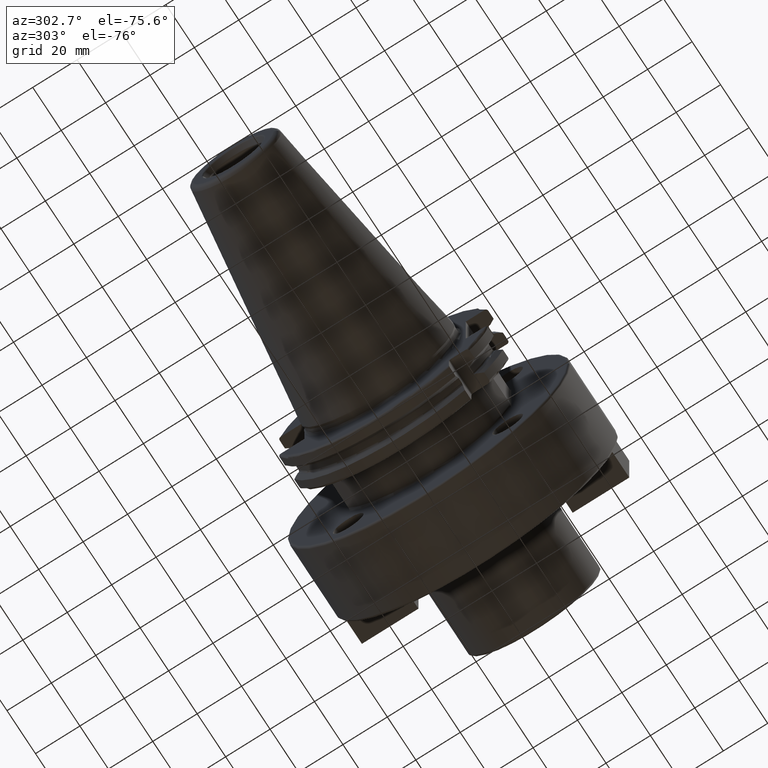
[diagram: clean part render]
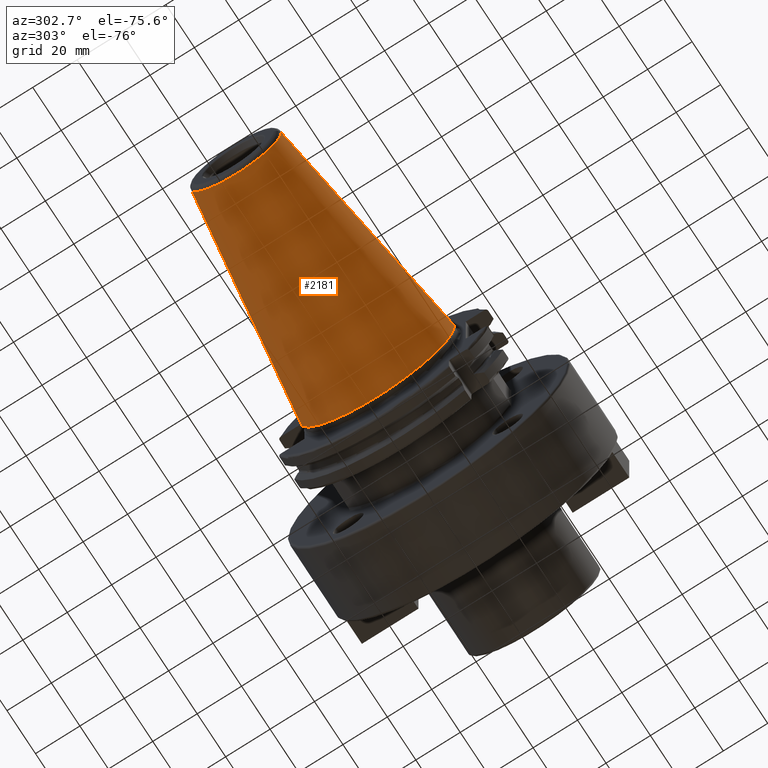
[diagram: same view with one face highlighted and labeled with its STEP entity id]
A machine part, auxiliary view. The second image highlights one B-rep face of the part: STEP entity #2181.
In plain terms, the highlighted conical surface has half-angle 8.298 deg.
Its self-contained STEP definition (entity closure, byte-faithful):
#32=CARTESIAN_POINT('',(-9.967471700563E1,0.E0,0.E0));
#33=DIRECTION('',(-1.E0,0.E0,0.E0));
#34=DIRECTION('',(0.E0,1.E0,0.E0));
#35=AXIS2_PLACEMENT_3D('',#32,#33,#34);
#47=DIRECTION('',(-9.895312636440E-1,-1.443186691705E-1,0.E0));
#48=VECTOR('',#47,1.002343617797E2);
#49=CARTESIAN_POINT('',(-4.896823332305E-1,3.485358204157E1,0.E0));
#50=LINE('',#49,#48);
#51=DIRECTION('',(-9.895312636440E-1,1.443186691705E-1,0.E0));
#52=VECTOR('',#51,1.002343617797E2);
#53=CARTESIAN_POINT('',(-4.896823332305E-1,-3.485358204157E1,0.E0));
#54=LINE('',#53,#52);
#55=CARTESIAN_POINT('',(-4.896823332305E-1,0.E0,0.E0));
#56=DIRECTION('',(-1.E0,0.E0,0.E0));
#57=DIRECTION('',(0.E0,1.E0,0.E0));
#58=AXIS2_PLACEMENT_3D('',#55,#56,#57);
#1741=CARTESIAN_POINT('',(-9.967471700563E1,2.038789234437E1,0.E0));
#1743=VERTEX_POINT('',#1741);
#1745=CARTESIAN_POINT('',(-9.967471700563E1,-2.038789234437E1,0.E0));
#1747=VERTEX_POINT('',#1745);
#1809=CARTESIAN_POINT('',(-4.896823332305E-1,3.485358204157E1,0.E0));
#1810=VERTEX_POINT('',#1809);
#1811=CARTESIAN_POINT('',(-4.896823332305E-1,-3.485358204157E1,0.E0));
#1812=VERTEX_POINT('',#1811);
#2169=CARTESIAN_POINT('',(-5.008219966943E1,0.E0,0.E0));
#2170=DIRECTION('',(1.E0,0.E0,0.E0));
#2171=DIRECTION('',(0.E0,-1.E0,0.E0));
#2172=AXIS2_PLACEMENT_3D('',#2169,#2170,#2171);
#2173=CONICAL_SURFACE('',#2172,2.762073719297E1,8.297826828206E0);
#2174=ORIENTED_EDGE('',*,*,#2159,.T.);
#2175=ORIENTED_EDGE('',*,*,#2136,.T.);
#2176=ORIENTED_EDGE('',*,*,#2163,.F.);
#2178=ORIENTED_EDGE('',*,*,#2177,.F.);
#2179=EDGE_LOOP('',(#2174,#2175,#2176,#2178));
#2180=FACE_OUTER_BOUND('',#2179,.F.);
#2181=ADVANCED_FACE('',(#2180),#2173,.T.);
#36=CIRCLE('',#35,2.038789234437E1);
#59=CIRCLE('',#58,3.485358204157E1);
#2136=EDGE_CURVE('',#1743,#1747,#36,.T.);
#2159=EDGE_CURVE('',#1810,#1743,#50,.T.);
#2163=EDGE_CURVE('',#1812,#1747,#54,.T.);
#2177=EDGE_CURVE('',#1810,#1812,#59,.T.);